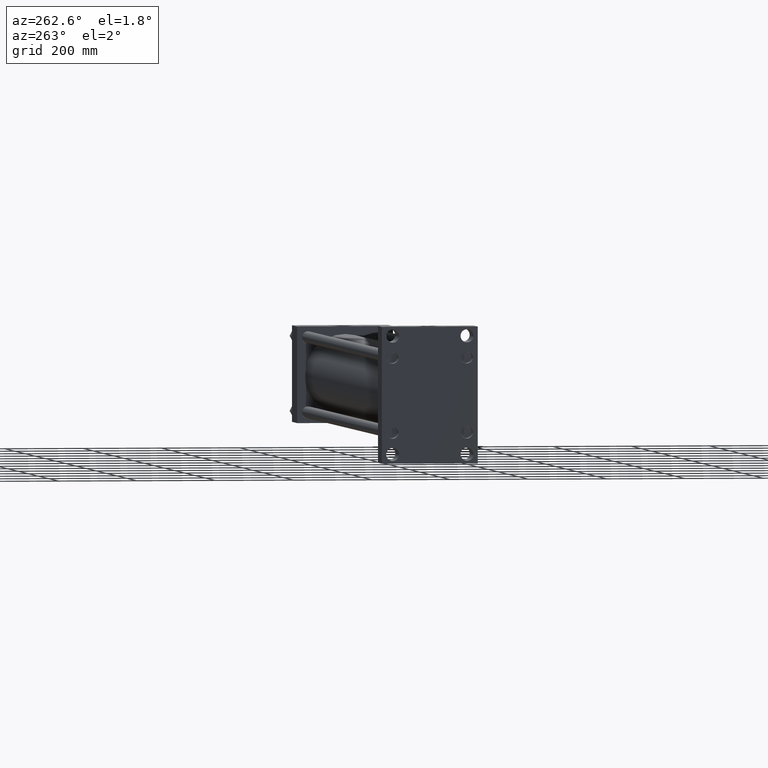
[diagram: clean part render]
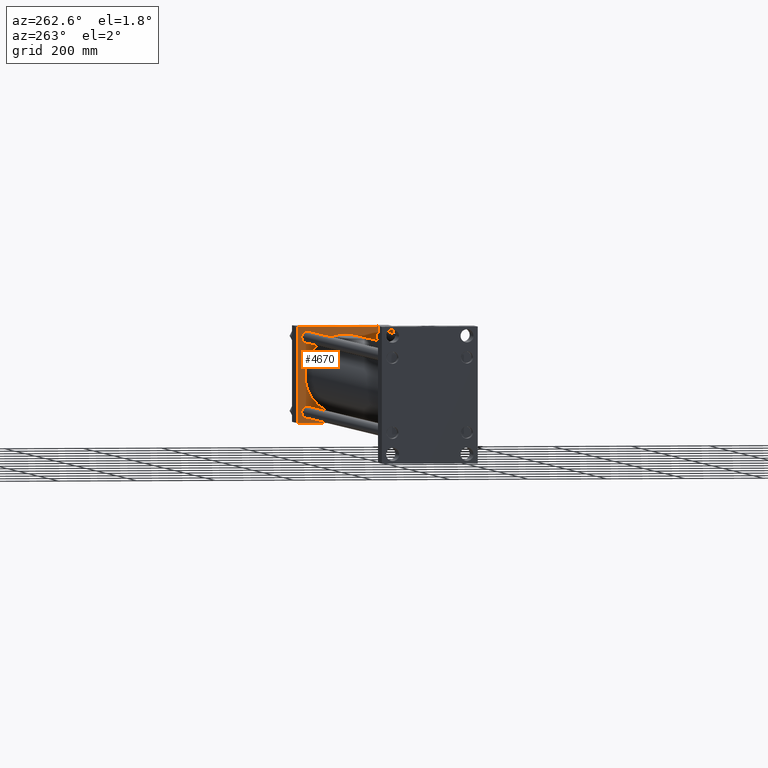
[diagram: same view with one face highlighted and labeled with its STEP entity id]
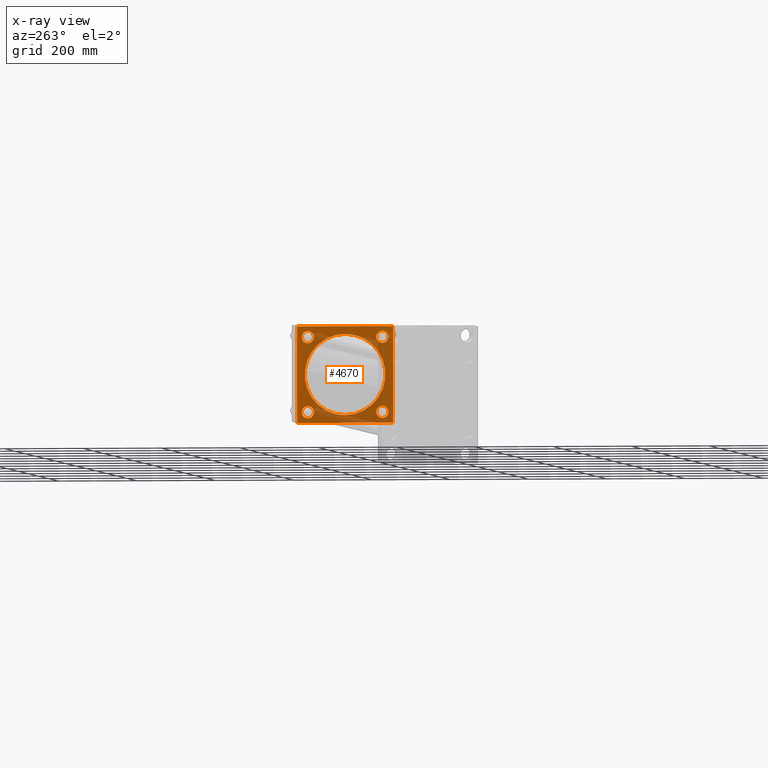
[diagram: x-ray of the same camera — body ghosted, the highlighted face saturated]
A machine part, auxiliary view. The second image highlights one B-rep face of the part: STEP entity #4670.
The next image is the same camera in x-ray: the body ghosted, the highlighted face saturated — about 52% of this face is hidden behind the body in this view.
In plain terms, the highlighted planar face has unit normal (-1, 0, 0).
Its self-contained STEP definition (entity closure, byte-faithful):
#361 = VERTEX_POINT ( 'NONE', #6153 ) ;
#398 = VECTOR ( 'NONE', #35714, 1000.000000000000114 ) ;
#671 = ORIENTED_EDGE ( 'NONE', *, *, #42723, .T. ) ;
#767 = CARTESIAN_POINT ( 'NONE',  ( 1667.000000000000000, -95.09999999999996589, 95.10000000000005116 ) ) ;
#1208 = EDGE_CURVE ( 'NONE', #29928, #361, #1456, .T. ) ;
#1401 = CARTESIAN_POINT ( 'NONE',  ( 1667.000000000000000, 1.001177681725252697E-14, -103.0000000000000000 ) ) ;
#1456 = CIRCLE ( 'NONE', #11267, 15.49999999999984723 ) ;
#1804 = CARTESIAN_POINT ( 'NONE',  ( 1667.000000000000000, -95.09999999999996589, -110.5999999999998948 ) ) ;
#3086 = LINE ( 'NONE', #15105, #30109 ) ;
#3282 = ORIENTED_EDGE ( 'NONE', *, *, #1208, .T. ) ;
#3342 = FACE_BOUND ( 'NONE', #17933, .T. ) ;
#3520 = CIRCLE ( 'NONE', #8407, 15.49999999999984723 ) ;
#3598 = CARTESIAN_POINT ( 'NONE',  ( 1667.000000000000000, 122.5000000000000284, 122.0000000000000995 ) ) ;
#3840 = CARTESIAN_POINT ( 'NONE',  ( 1667.000000000000000, 0.000000000000000000, 0.000000000000000000 ) ) ;
#4592 = EDGE_CURVE ( 'NONE', #33607, #15394, #3086, .T. ) ;
#4649 = DIRECTION ( 'NONE',  ( 0.000000000000000000, 0.000000000000000000, 1.000000000000000000 ) ) ;
#4670 = ADVANCED_FACE ( 'NONE', ( #7682, #15596, #31425, #3342, #14848, #30429 ), #12018, .T. ) ;
#5539 = ORIENTED_EDGE ( 'NONE', *, *, #42358, .F. ) ;
#5580 = EDGE_CURVE ( 'NONE', #45914, #34071, #8969, .T. ) ;
#5764 = EDGE_LOOP ( 'NONE', ( #3282, #7223 ) ) ;
#5849 = DIRECTION ( 'NONE',  ( 0.000000000000000000, -1.132880637372608740E-16, -1.000000000000000000 ) ) ;
#6153 = CARTESIAN_POINT ( 'NONE',  ( 1667.000000000000000, 95.09999999999999432, 79.60000000000016485 ) ) ;
#6188 = EDGE_LOOP ( 'NONE', ( #42544, #33401 ) ) ;
#6271 = ORIENTED_EDGE ( 'NONE', *, *, #24115, .T. ) ;
#6695 = VECTOR ( 'NONE', #5849, 1000.000000000000000 ) ;
#6932 = DIRECTION ( 'NONE',  ( 0.000000000000000000, 0.000000000000000000, 1.000000000000000000 ) ) ;
#7223 = ORIENTED_EDGE ( 'NONE', *, *, #43595, .T. ) ;
#7320 = AXIS2_PLACEMENT_3D ( 'NONE', #20723, #15871, #20465 ) ;
#7682 = FACE_BOUND ( 'NONE', #31845, .T. ) ;
#8407 = AXIS2_PLACEMENT_3D ( 'NONE', #29817, #49459, #17326 ) ;
#8933 = AXIS2_PLACEMENT_3D ( 'NONE', #3840, #45990, #27593 ) ;
#8969 = CIRCLE ( 'NONE', #15485, 15.49999999999984723 ) ;
#9087 = CIRCLE ( 'NONE', #31890, 103.0000000000000000 ) ;
#9141 = EDGE_CURVE ( 'NONE', #41980, #22929, #9087, .T. ) ;
#9185 = AXIS2_PLACEMENT_3D ( 'NONE', #45992, #11028, #6932 ) ;
#9630 = DIRECTION ( 'NONE',  ( 1.000000000000000000, 0.000000000000000000, 0.000000000000000000 ) ) ;
#10788 = AXIS2_PLACEMENT_3D ( 'NONE', #42346, #50266, #15284 ) ;
#10797 = CARTESIAN_POINT ( 'NONE',  ( 1667.000000000000000, -122.2500000000000142, -122.2500000000000142 ) ) ;
#11028 = DIRECTION ( 'NONE',  ( 1.000000000000000000, 0.000000000000000000, -0.000000000000000000 ) ) ;
#11267 = AXIS2_PLACEMENT_3D ( 'NONE', #39374, #39623, #4649 ) ;
#11690 = VECTOR ( 'NONE', #17440, 1000.000000000000000 ) ;
#12018 = PLANE ( 'NONE',  #8933 ) ;
#12139 = VERTEX_POINT ( 'NONE', #32757 ) ;
#12660 = VERTEX_POINT ( 'NONE', #30619 ) ;
#13138 = DIRECTION ( 'NONE',  ( 0.000000000000000000, -1.000000000000000000, 0.000000000000000000 ) ) ;
#14068 = CARTESIAN_POINT ( 'NONE',  ( 1667.000000000000000, 122.5000000000000284, -122.0000000000000711 ) ) ;
#14546 = CARTESIAN_POINT ( 'NONE',  ( 1667.000000000000000, 95.09999999999999432, 95.10000000000002274 ) ) ;
#14806 = DIRECTION ( 'NONE',  ( 0.000000000000000000, 0.000000000000000000, 1.000000000000000000 ) ) ;
#14848 = FACE_BOUND ( 'NONE', #41365, .T. ) ;
#15105 = CARTESIAN_POINT ( 'NONE',  ( 1667.000000000000000, 122.2500000000000426, -122.2500000000000426 ) ) ;
#15243 = CARTESIAN_POINT ( 'NONE',  ( 1667.000000000000000, -95.09999999999996589, -95.10000000000005116 ) ) ;
#15284 = DIRECTION ( 'NONE',  ( 0.000000000000000000, 0.000000000000000000, -1.000000000000000000 ) ) ;
#15376 = EDGE_CURVE ( 'NONE', #31128, #39022, #28773, .T. ) ;
#15394 = VERTEX_POINT ( 'NONE', #18939 ) ;
#15449 = DIRECTION ( 'NONE',  ( 1.000000000000000000, 0.000000000000000000, -0.000000000000000000 ) ) ;
#15485 = AXIS2_PLACEMENT_3D ( 'NONE', #767, #31942, #47506 ) ;
#15507 = VERTEX_POINT ( 'NONE', #3598 ) ;
#15596 = FACE_BOUND ( 'NONE', #5764, .T. ) ;
#15871 = DIRECTION ( 'NONE',  ( 1.000000000000000000, 0.000000000000000000, -0.000000000000000000 ) ) ;
#16710 = CARTESIAN_POINT ( 'NONE',  ( 1667.000000000000000, -95.09999999999996589, 110.5999999999998948 ) ) ;
#17290 = EDGE_CURVE ( 'NONE', #39022, #31128, #3520, .T. ) ;
#17326 = DIRECTION ( 'NONE',  ( 0.000000000000000000, 0.000000000000000000, 1.000000000000000000 ) ) ;
#17440 = DIRECTION ( 'NONE',  ( 0.000000000000000000, -1.000000000000000000, -1.699320956058913233E-16 ) ) ;
#17552 = CARTESIAN_POINT ( 'NONE',  ( 1667.000000000000000, -2.602085213965210642E-15, 0.000000000000000000 ) ) ;
#17739 = CARTESIAN_POINT ( 'NONE',  ( 1667.000000000000000, 95.09999999999999432, 110.5999999999998664 ) ) ;
#17933 = EDGE_LOOP ( 'NONE', ( #48367, #31590 ) ) ;
#18019 = EDGE_CURVE ( 'NONE', #12660, #31498, #33017, .T. ) ;
#18342 = CIRCLE ( 'NONE', #43617, 15.49999999999984723 ) ;
#18561 = LINE ( 'NONE', #45114, #33111 ) ;
#18855 = EDGE_CURVE ( 'NONE', #37985, #25069, #18342, .T. ) ;
#18939 = CARTESIAN_POINT ( 'NONE',  ( 1667.000000000000000, 122.0000000000000853, -122.5000000000000142 ) ) ;
#19386 = EDGE_CURVE ( 'NONE', #12139, #36681, #27807, .T. ) ;
#20189 = CARTESIAN_POINT ( 'NONE',  ( 1667.000000000000000, -2.602085213965210642E-15, 103.0000000000000000 ) ) ;
#20456 = CARTESIAN_POINT ( 'NONE',  ( 1667.000000000000000, -121.9999999999998010, 122.5000000000000000 ) ) ;
#20465 = DIRECTION ( 'NONE',  ( 0.000000000000000000, 0.000000000000000000, 1.000000000000000000 ) ) ;
#20700 = LINE ( 'NONE', #40814, #6695 ) ;
#20723 = CARTESIAN_POINT ( 'NONE',  ( 1667.000000000000000, -95.09999999999996589, -95.10000000000005116 ) ) ;
#21638 = DIRECTION ( 'NONE',  ( -0.000000000000000000, 0.7071067811865573427, 0.7071067811865376918 ) ) ;
#22929 = VERTEX_POINT ( 'NONE', #20189 ) ;
#23129 = DIRECTION ( 'NONE',  ( 0.000000000000000000, 0.000000000000000000, 1.000000000000000000 ) ) ;
#23240 = DIRECTION ( 'NONE',  ( 0.000000000000000000, 0.7071067811865474617, -0.7071067811865474617 ) ) ;
#23268 = DIRECTION ( 'NONE',  ( -0.000000000000000000, -0.7071067811865474617, -0.7071067811865474617 ) ) ;
#24115 = EDGE_CURVE ( 'NONE', #43897, #31498, #18561, .T. ) ;
#24668 = VECTOR ( 'NONE', #13138, 1000.000000000000000 ) ;
#25069 = VERTEX_POINT ( 'NONE', #32589 ) ;
#25341 = ORIENTED_EDGE ( 'NONE', *, *, #49534, .T. ) ;
#25442 = ORIENTED_EDGE ( 'NONE', *, *, #38076, .T. ) ;
#25479 = CIRCLE ( 'NONE', #48326, 15.49999999999984723 ) ;
#25690 = ORIENTED_EDGE ( 'NONE', *, *, #5580, .T. ) ;
#26773 = ORIENTED_EDGE ( 'NONE', *, *, #41168, .T. ) ;
#27593 = DIRECTION ( 'NONE',  ( 0.000000000000000000, 0.000000000000000000, 1.000000000000000000 ) ) ;
#27807 = LINE ( 'NONE', #10797, #398 ) ;
#27951 = ORIENTED_EDGE ( 'NONE', *, *, #9141, .T. ) ;
#28064 = CIRCLE ( 'NONE', #46784, 15.49999999999984723 ) ;
#28773 = CIRCLE ( 'NONE', #9185, 15.49999999999984723 ) ;
#29108 = CARTESIAN_POINT ( 'NONE',  ( 1667.000000000000000, 122.5000000000000284, 122.5000000000000426 ) ) ;
#29344 = CIRCLE ( 'NONE', #7320, 15.49999999999984723 ) ;
#29817 = CARTESIAN_POINT ( 'NONE',  ( 1667.000000000000000, 95.09999999999999432, -95.10000000000002274 ) ) ;
#29928 = VERTEX_POINT ( 'NONE', #17739 ) ;
#30109 = VECTOR ( 'NONE', #23268, 1000.000000000000114 ) ;
#30429 = FACE_OUTER_BOUND ( 'NONE', #47053, .T. ) ;
#30619 = CARTESIAN_POINT ( 'NONE',  ( 1667.000000000000000, 122.0000000000000853, 122.5000000000000426 ) ) ;
#30820 = DIRECTION ( 'NONE',  ( 1.000000000000000000, 0.000000000000000000, -0.000000000000000000 ) ) ;
#31128 = VERTEX_POINT ( 'NONE', #40896 ) ;
#31287 = CARTESIAN_POINT ( 'NONE',  ( 1667.000000000000000, -95.09999999999996589, 95.10000000000005116 ) ) ;
#31425 = FACE_BOUND ( 'NONE', #6188, .T. ) ;
#31498 = VERTEX_POINT ( 'NONE', #20456 ) ;
#31590 = ORIENTED_EDGE ( 'NONE', *, *, #18855, .T. ) ;
#31654 = CARTESIAN_POINT ( 'NONE',  ( 1667.000000000000000, 95.09999999999999432, -110.5999999999998664 ) ) ;
#31827 = DIRECTION ( 'NONE',  ( 0.000000000000000000, 0.000000000000000000, 1.000000000000000000 ) ) ;
#31845 = EDGE_LOOP ( 'NONE', ( #40015, #25690 ) ) ;
#31890 = AXIS2_PLACEMENT_3D ( 'NONE', #17552, #9630, #45104 ) ;
#31942 = DIRECTION ( 'NONE',  ( 1.000000000000000000, 0.000000000000000000, -0.000000000000000000 ) ) ;
#32589 = CARTESIAN_POINT ( 'NONE',  ( 1667.000000000000000, -95.09999999999996589, -79.60000000000019327 ) ) ;
#32661 = ORIENTED_EDGE ( 'NONE', *, *, #19386, .T. ) ;
#32757 = CARTESIAN_POINT ( 'NONE',  ( 1667.000000000000000, -122.0000000000000568, -122.5000000000000142 ) ) ;
#32764 = CARTESIAN_POINT ( 'NONE',  ( 1667.000000000000000, 122.5000000000000284, 122.5000000000000426 ) ) ;
#32812 = CIRCLE ( 'NONE', #10788, 103.0000000000000000 ) ;
#33017 = LINE ( 'NONE', #32764, #11690 ) ;
#33111 = VECTOR ( 'NONE', #21638, 1000.000000000000114 ) ;
#33401 = ORIENTED_EDGE ( 'NONE', *, *, #17290, .T. ) ;
#33607 = VERTEX_POINT ( 'NONE', #14068 ) ;
#34071 = VERTEX_POINT ( 'NONE', #16710 ) ;
#35714 = DIRECTION ( 'NONE',  ( 0.000000000000000000, -0.7071067811865474617, 0.7071067811865474617 ) ) ;
#36681 = VERTEX_POINT ( 'NONE', #37317 ) ;
#37012 = EDGE_CURVE ( 'NONE', #25069, #37985, #29344, .T. ) ;
#37317 = CARTESIAN_POINT ( 'NONE',  ( 1667.000000000000000, -122.5000000000000142, -122.0000000000000568 ) ) ;
#37985 = VERTEX_POINT ( 'NONE', #1804 ) ;
#38076 = EDGE_CURVE ( 'NONE', #12660, #15507, #45697, .T. ) ;
#39022 = VERTEX_POINT ( 'NONE', #31654 ) ;
#39374 = CARTESIAN_POINT ( 'NONE',  ( 1667.000000000000000, 95.09999999999999432, 95.10000000000002274 ) ) ;
#39407 = CARTESIAN_POINT ( 'NONE',  ( 1667.000000000000000, -122.4999999999999858, 121.9999999999998295 ) ) ;
#39623 = DIRECTION ( 'NONE',  ( 1.000000000000000000, 0.000000000000000000, -0.000000000000000000 ) ) ;
#39804 = DIRECTION ( 'NONE',  ( 0.000000000000000000, 0.000000000000000000, -1.000000000000000000 ) ) ;
#39957 = VECTOR ( 'NONE', #23240, 1000.000000000000114 ) ;
#40015 = ORIENTED_EDGE ( 'NONE', *, *, #46775, .T. ) ;
#40174 = CARTESIAN_POINT ( 'NONE',  ( 1667.000000000000000, 122.5000000000000284, -122.5000000000000142 ) ) ;
#40814 = CARTESIAN_POINT ( 'NONE',  ( 1667.000000000000000, -122.4999999999999858, 122.5000000000000000 ) ) ;
#40896 = CARTESIAN_POINT ( 'NONE',  ( 1667.000000000000000, 95.09999999999999432, -79.60000000000016485 ) ) ;
#41168 = EDGE_CURVE ( 'NONE', #15507, #33607, #47745, .T. ) ;
#41365 = EDGE_LOOP ( 'NONE', ( #671, #27951 ) ) ;
#41517 = ORIENTED_EDGE ( 'NONE', *, *, #18019, .F. ) ;
#41980 = VERTEX_POINT ( 'NONE', #1401 ) ;
#42253 = CARTESIAN_POINT ( 'NONE',  ( 1667.000000000000000, -95.09999999999996589, 79.60000000000019327 ) ) ;
#42346 = CARTESIAN_POINT ( 'NONE',  ( 1667.000000000000000, -2.602085213965210642E-15, 0.000000000000000000 ) ) ;
#42358 = EDGE_CURVE ( 'NONE', #43897, #36681, #20700, .T. ) ;
#42527 = VECTOR ( 'NONE', #39804, 1000.000000000000000 ) ;
#42544 = ORIENTED_EDGE ( 'NONE', *, *, #15376, .T. ) ;
#42616 = DIRECTION ( 'NONE',  ( 1.000000000000000000, 0.000000000000000000, -0.000000000000000000 ) ) ;
#42723 = EDGE_CURVE ( 'NONE', #22929, #41980, #32812, .T. ) ;
#42871 = CARTESIAN_POINT ( 'NONE',  ( 1667.000000000000000, 122.2500000000000853, 122.2500000000000853 ) ) ;
#43595 = EDGE_CURVE ( 'NONE', #361, #29928, #25479, .T. ) ;
#43617 = AXIS2_PLACEMENT_3D ( 'NONE', #15243, #30820, #31827 ) ;
#43897 = VERTEX_POINT ( 'NONE', #39407 ) ;
#45104 = DIRECTION ( 'NONE',  ( 0.000000000000000000, 0.000000000000000000, -1.000000000000000000 ) ) ;
#45114 = CARTESIAN_POINT ( 'NONE',  ( 1667.000000000000000, -122.2499999999982379, 122.2500000000016200 ) ) ;
#45697 = LINE ( 'NONE', #42871, #39957 ) ;
#45914 = VERTEX_POINT ( 'NONE', #42253 ) ;
#45990 = DIRECTION ( 'NONE',  ( -1.000000000000000000, -0.000000000000000000, 0.000000000000000000 ) ) ;
#45992 = CARTESIAN_POINT ( 'NONE',  ( 1667.000000000000000, 95.09999999999999432, -95.10000000000002274 ) ) ;
#46775 = EDGE_CURVE ( 'NONE', #34071, #45914, #28064, .T. ) ;
#46784 = AXIS2_PLACEMENT_3D ( 'NONE', #31287, #15449, #23129 ) ;
#47053 = EDGE_LOOP ( 'NONE', ( #25341, #32661, #5539, #6271, #41517, #25442, #26773, #49413 ) ) ;
#47506 = DIRECTION ( 'NONE',  ( 0.000000000000000000, 0.000000000000000000, 1.000000000000000000 ) ) ;
#47745 = LINE ( 'NONE', #29108, #42527 ) ;
#48103 = LINE ( 'NONE', #40174, #24668 ) ;
#48326 = AXIS2_PLACEMENT_3D ( 'NONE', #14546, #42616, #14806 ) ;
#48367 = ORIENTED_EDGE ( 'NONE', *, *, #37012, .T. ) ;
#49413 = ORIENTED_EDGE ( 'NONE', *, *, #4592, .T. ) ;
#49459 = DIRECTION ( 'NONE',  ( 1.000000000000000000, 0.000000000000000000, -0.000000000000000000 ) ) ;
#49534 = EDGE_CURVE ( 'NONE', #15394, #12139, #48103, .T. ) ;
#50266 = DIRECTION ( 'NONE',  ( 1.000000000000000000, 0.000000000000000000, 0.000000000000000000 ) ) ;